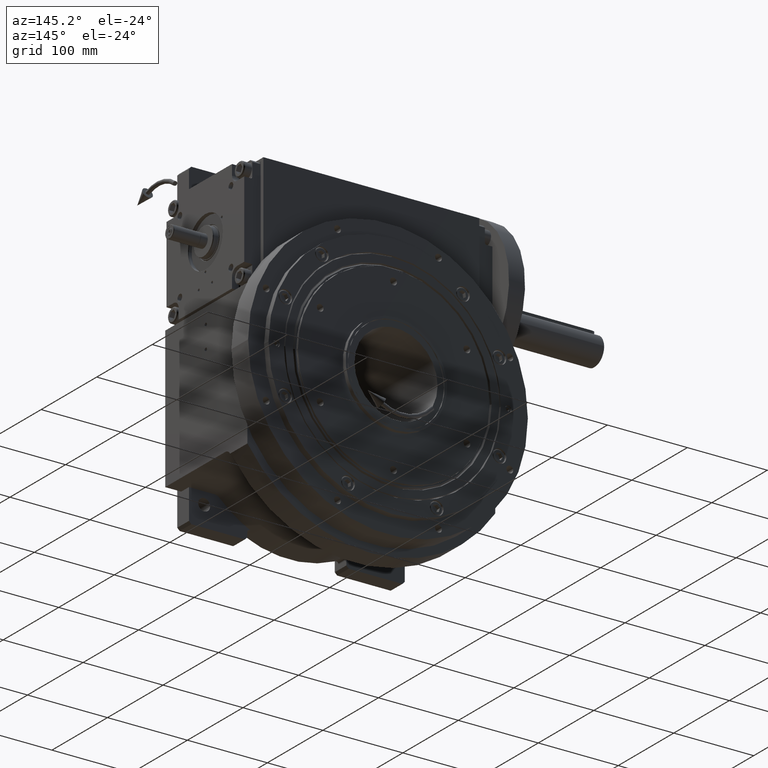
[diagram: clean part render]
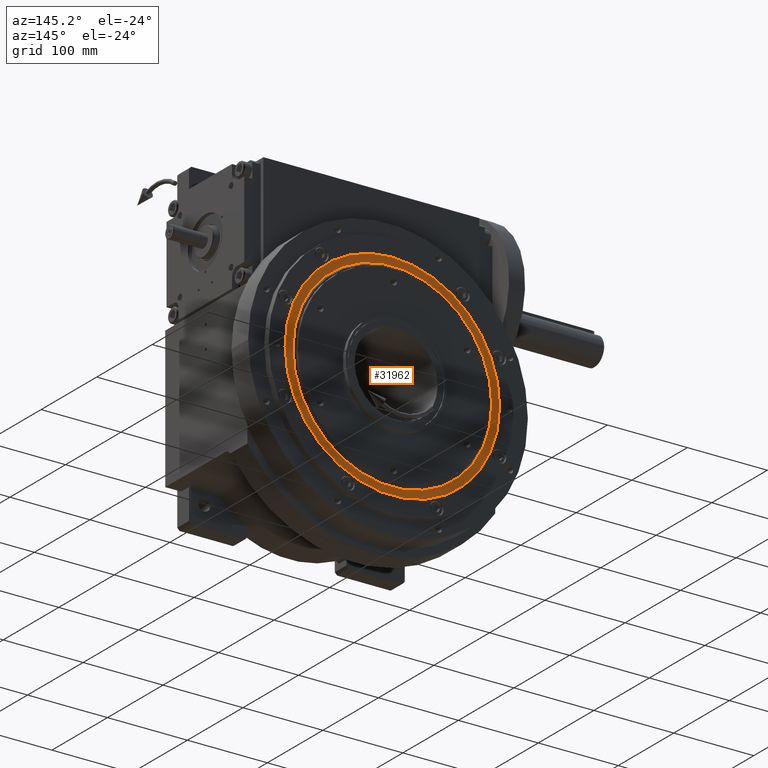
[diagram: same view with one face highlighted and labeled with its STEP entity id]
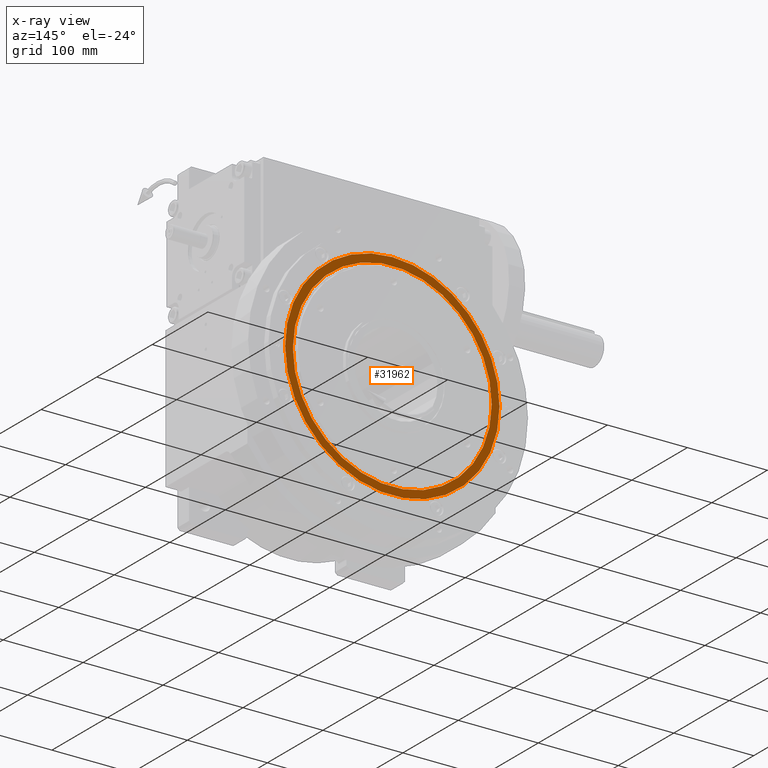
[diagram: x-ray of the same camera — body ghosted, the highlighted face saturated]
A machine part, auxiliary view. The second image highlights one B-rep face of the part: STEP entity #31962.
The next image is the same camera in x-ray: the body ghosted, the highlighted face saturated — about 0% of this face is hidden behind the body in this view.
In plain terms, the highlighted planar face has unit normal (0, -1, 0).
Its self-contained STEP definition (entity closure, byte-faithful):
#1915 = DIRECTION ( 'NONE',  ( 1.000000000000000000, 0.000000000000000000, 0.000000000000000000 ) ) ;
#4159 = CARTESIAN_POINT ( 'NONE',  ( 0.000000000000000000, 15.00000000000000000, 0.000000000000000000 ) ) ;
#5656 = VERTEX_POINT ( 'NONE', #49821 ) ;
#7292 = ORIENTED_EDGE ( 'NONE', *, *, #39721, .T. ) ;
#7850 = CARTESIAN_POINT ( 'NONE',  ( -6.111119403912000228E-13, 14.99999921314999796, -1.183053655041000191E-12 ) ) ;
#8441 = CARTESIAN_POINT ( 'NONE',  ( 0.000000000000000000, 15.00000000000000000, 0.000000000000000000 ) ) ;
#9099 = DIRECTION ( 'NONE',  ( 0.000000000000000000, 1.000000000000000000, 0.000000000000000000 ) ) ;
#9228 = DIRECTION ( 'NONE',  ( 0.000000000000000000, 1.000000000000000000, 0.000000000000000000 ) ) ;
#10498 = VERTEX_POINT ( 'NONE', #29841 ) ;
#11141 = DIRECTION ( 'NONE',  ( 0.000000000000000000, 0.000000000000000000, -1.000000000000000000 ) ) ;
#12265 = EDGE_LOOP ( 'NONE', ( #54346, #19194 ) ) ;
#13018 = AXIS2_PLACEMENT_3D ( 'NONE', #60941, #16956, #11141 ) ;
#13201 = DIRECTION ( 'NONE',  ( 0.000000000000000000, -1.000000000000000000, 0.000000000000000000 ) ) ;
#16582 = CIRCLE ( 'NONE', #39748, 134.1339612461999877 ) ;
#16597 = FACE_BOUND ( 'NONE', #12265, .T. ) ;
#16956 = DIRECTION ( 'NONE',  ( 0.000000000000000000, -1.000000000000000000, 0.000000000000000000 ) ) ;
#17528 = EDGE_CURVE ( 'NONE', #5656, #48970, #65351, .T. ) ;
#19194 = ORIENTED_EDGE ( 'NONE', *, *, #17528, .T. ) ;
#19196 = EDGE_LOOP ( 'NONE', ( #37770, #38158, #7292 ) ) ;
#19298 = DIRECTION ( 'NONE',  ( 1.000000000000000000, 0.000000000000000000, 0.000000000000000000 ) ) ;
#22599 = CARTESIAN_POINT ( 'NONE',  ( 5.754944283281999023E-13, 14.99999921314999796, -1.808331262508999781E-12 ) ) ;
#26330 = DIRECTION ( 'NONE',  ( -1.000000000000000000, 0.000000000000000000, 1.368073594971000355E-14 ) ) ;
#29841 = CARTESIAN_POINT ( 'NONE',  ( -6.112497290022000890E-13, 14.99999921314999796, -134.1339612462011814 ) ) ;
#30767 = DIRECTION ( 'NONE',  ( 0.000000000000000000, 1.000000000000000000, 0.000000000000000000 ) ) ;
#31962 = ADVANCED_FACE ( 'NONE', ( #66399, #16597 ), #38747, .F. ) ;
#32192 = CARTESIAN_POINT ( 'NONE',  ( 134.1339612461999877, 14.99999921314999796, 0.000000000000000000 ) ) ;
#32886 = CIRCLE ( 'NONE', #61953, 134.1339612461999877 ) ;
#34304 = CARTESIAN_POINT ( 'NONE',  ( -134.1339612461999877, 14.99999921314999796, 2.672004318779999831E-14 ) ) ;
#34894 = EDGE_CURVE ( 'NONE', #68226, #10498, #32886, .T. ) ;
#35124 = DIRECTION ( 'NONE',  ( 1.000000000000000000, 0.000000000000000000, 0.000000000000000000 ) ) ;
#37444 = AXIS2_PLACEMENT_3D ( 'NONE', #8441, #13201, #1915 ) ;
#37770 = ORIENTED_EDGE ( 'NONE', *, *, #34894, .T. ) ;
#38158 = ORIENTED_EDGE ( 'NONE', *, *, #56045, .T. ) ;
#38747 = PLANE ( 'NONE',  #13018 ) ;
#38950 = VERTEX_POINT ( 'NONE', #34304 ) ;
#39458 = CIRCLE ( 'NONE', #53440, 134.1339612461999877 ) ;
#39721 = EDGE_CURVE ( 'NONE', #38950, #68226, #16582, .T. ) ;
#39748 = AXIS2_PLACEMENT_3D ( 'NONE', #22599, #9228, #26330 ) ;
#42319 = DIRECTION ( 'NONE',  ( 1.000000000000000000, 0.000000000000000000, 0.000000000000000000 ) ) ;
#43074 = EDGE_CURVE ( 'NONE', #5656, #48970, #49733, .T. ) ;
#48970 = VERTEX_POINT ( 'NONE', #55526 ) ;
#49733 = CIRCLE ( 'NONE', #65955, 124.3716342951999962 ) ;
#49821 = CARTESIAN_POINT ( 'NONE',  ( 124.3716342951999962, 15.00000000000000000, 0.000000000000000000 ) ) ;
#53440 = AXIS2_PLACEMENT_3D ( 'NONE', #7850, #30767, #35124 ) ;
#54346 = ORIENTED_EDGE ( 'NONE', *, *, #43074, .F. ) ;
#55526 = CARTESIAN_POINT ( 'NONE',  ( -124.3716342951999962, 15.00000000000000000, 1.523113238442999970E-14 ) ) ;
#56045 = EDGE_CURVE ( 'NONE', #10498, #38950, #39458, .T. ) ;
#60941 = CARTESIAN_POINT ( 'NONE',  ( 0.000000000000000000, 15.00000000000000000, 0.000000000000000000 ) ) ;
#61953 = AXIS2_PLACEMENT_3D ( 'NONE', #69845, #9099, #19298 ) ;
#64148 = DIRECTION ( 'NONE',  ( 0.000000000000000000, 1.000000000000000000, 0.000000000000000000 ) ) ;
#65351 = CIRCLE ( 'NONE', #37444, 124.3716342951999962 ) ;
#65955 = AXIS2_PLACEMENT_3D ( 'NONE', #4159, #64148, #42319 ) ;
#66399 = FACE_OUTER_BOUND ( 'NONE', #19196, .T. ) ;
#68226 = VERTEX_POINT ( 'NONE', #32192 ) ;
#69845 = CARTESIAN_POINT ( 'NONE',  ( -6.111119403912000228E-13, 14.99999921314999796, -1.183053655041000191E-12 ) ) ;